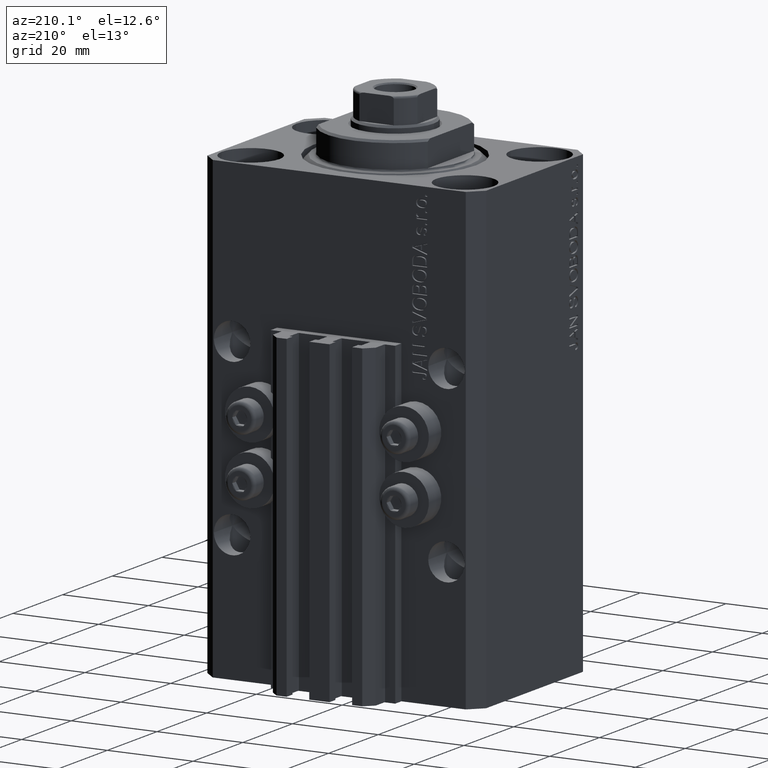
[diagram: clean part render]
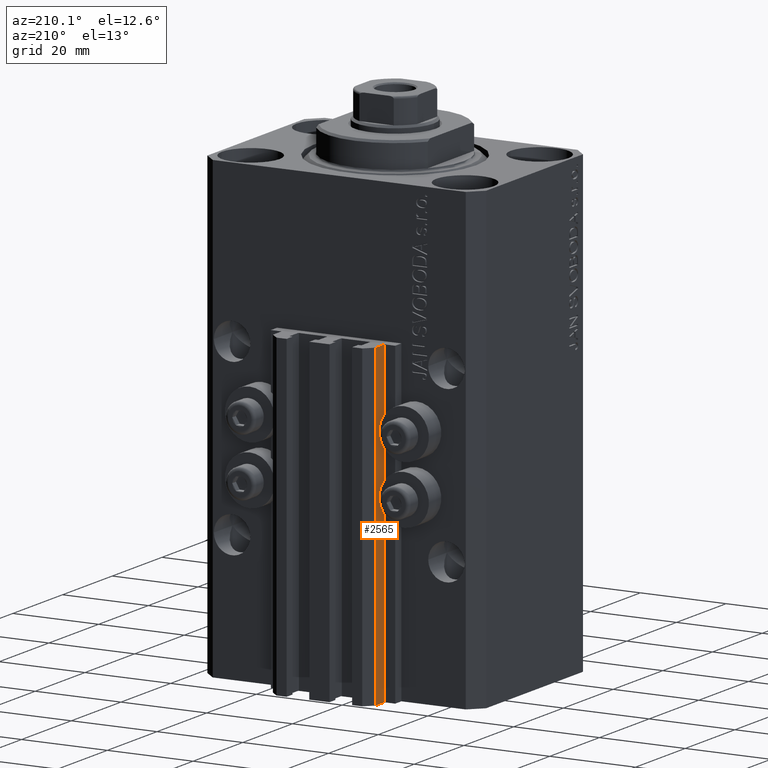
[diagram: same view with one face highlighted and labeled with its STEP entity id]
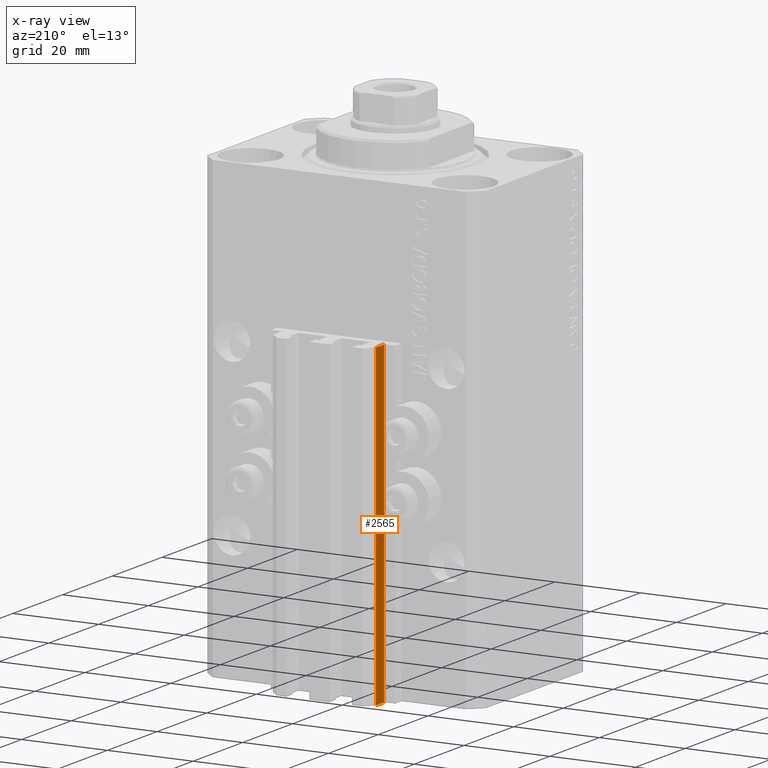
[diagram: x-ray of the same camera — body ghosted, the highlighted face saturated]
A machine part, auxiliary view. The second image highlights one B-rep face of the part: STEP entity #2565.
The next image is the same camera in x-ray: the body ghosted, the highlighted face saturated — about 0% of this face is hidden behind the body in this view.
In plain terms, the highlighted planar face has unit normal (-1, 0, 0).
Its self-contained STEP definition (entity closure, byte-faithful):
#299 = EDGE_CURVE ( 'NONE', #3603, #2274, #24199, .T. ) ;
#2274 = VERTEX_POINT ( 'NONE', #44902 ) ;
#2565 = ADVANCED_FACE ( 'NONE', ( #45733 ), #29636, .T. ) ;
#3603 = VERTEX_POINT ( 'NONE', #39459 ) ;
#3790 = ORIENTED_EDGE ( 'NONE', *, *, #299, .F. ) ;
#5294 = LINE ( 'NONE', #23170, #30978 ) ;
#6311 = CARTESIAN_POINT ( 'NONE',  ( -12.00000000000000000, 28.49999999999948841, -33.00000000000000000 ) ) ;
#8123 = LINE ( 'NONE', #25997, #36279 ) ;
#8793 = CARTESIAN_POINT ( 'NONE',  ( -12.00000000000000000, 25.19999999999949125, -107.0000000000000000 ) ) ;
#10797 = DIRECTION ( 'NONE',  ( 0.000000000000000000, 0.000000000000000000, 1.000000000000000000 ) ) ;
#11635 = VECTOR ( 'NONE', #28705, 1000.000000000000000 ) ;
#13488 = VERTEX_POINT ( 'NONE', #42492 ) ;
#14660 = AXIS2_PLACEMENT_3D ( 'NONE', #36878, #26243, #42105 ) ;
#23170 = CARTESIAN_POINT ( 'NONE',  ( -12.00000000000000000, 25.19999999999949125, -107.0000000000000000 ) ) ;
#24199 = LINE ( 'NONE', #6311, #25770 ) ;
#24848 = CARTESIAN_POINT ( 'NONE',  ( -12.00000000000000000, 28.49999999999948841, -107.0000000000000000 ) ) ;
#24942 = VERTEX_POINT ( 'NONE', #8793 ) ;
#25770 = VECTOR ( 'NONE', #35768, 1000.000000000000000 ) ;
#25997 = CARTESIAN_POINT ( 'NONE',  ( -12.00000000000000000, 28.49999999999948841, -107.0000000000000000 ) ) ;
#26243 = DIRECTION ( 'NONE',  ( -1.000000000000000000, 0.000000000000000000, 0.000000000000000000 ) ) ;
#26283 = ORIENTED_EDGE ( 'NONE', *, *, #35636, .T. ) ;
#27500 = DIRECTION ( 'NONE',  ( 0.000000000000000000, 0.000000000000000000, 1.000000000000000000 ) ) ;
#28705 = DIRECTION ( 'NONE',  ( 0.000000000000000000, -1.000000000000000000, 0.000000000000000000 ) ) ;
#29185 = EDGE_CURVE ( 'NONE', #13488, #3603, #8123, .T. ) ;
#29341 = ORIENTED_EDGE ( 'NONE', *, *, #29185, .F. ) ;
#29636 = PLANE ( 'NONE',  #14660 ) ;
#30978 = VECTOR ( 'NONE', #27500, 1000.000000000000000 ) ;
#31779 = EDGE_CURVE ( 'NONE', #13488, #24942, #43195, .T. ) ;
#35636 = EDGE_CURVE ( 'NONE', #24942, #2274, #5294, .T. ) ;
#35768 = DIRECTION ( 'NONE',  ( 0.000000000000000000, -1.000000000000000000, 0.000000000000000000 ) ) ;
#36279 = VECTOR ( 'NONE', #10797, 1000.000000000000000 ) ;
#36417 = EDGE_LOOP ( 'NONE', ( #3790, #29341, #42834, #26283 ) ) ;
#36878 = CARTESIAN_POINT ( 'NONE',  ( -12.00000000000000000, 28.49999999999948841, -107.0000000000000000 ) ) ;
#39459 = CARTESIAN_POINT ( 'NONE',  ( -12.00000000000000000, 28.49999999999948841, -33.00000000000000000 ) ) ;
#42105 = DIRECTION ( 'NONE',  ( 0.000000000000000000, 0.000000000000000000, 1.000000000000000000 ) ) ;
#42492 = CARTESIAN_POINT ( 'NONE',  ( -12.00000000000000000, 28.49999999999948841, -107.0000000000000000 ) ) ;
#42834 = ORIENTED_EDGE ( 'NONE', *, *, #31779, .T. ) ;
#43195 = LINE ( 'NONE', #24848, #11635 ) ;
#44902 = CARTESIAN_POINT ( 'NONE',  ( -12.00000000000000000, 25.19999999999949125, -33.00000000000000000 ) ) ;
#45733 = FACE_OUTER_BOUND ( 'NONE', #36417, .T. ) ;